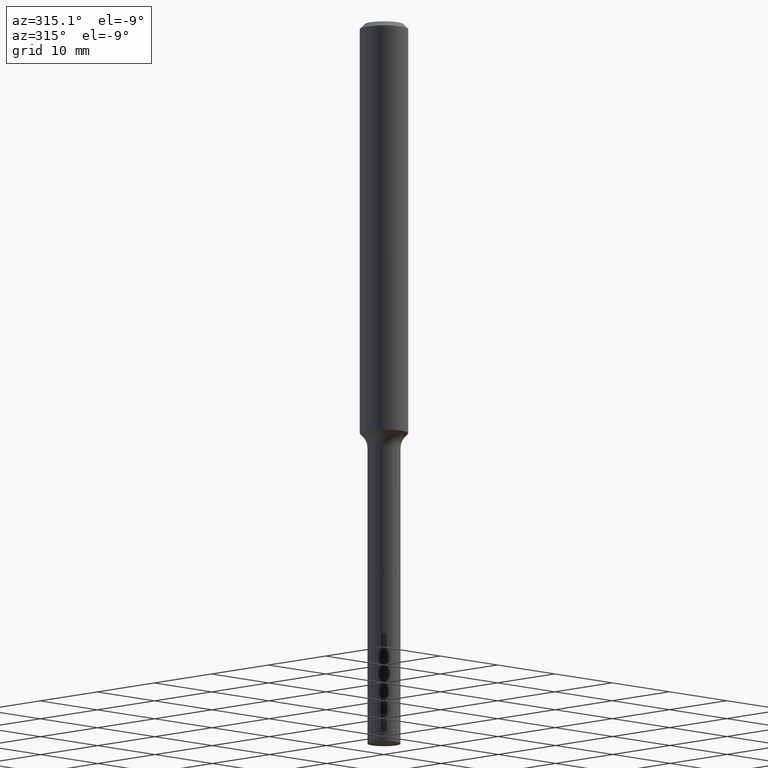
[diagram: clean part render]
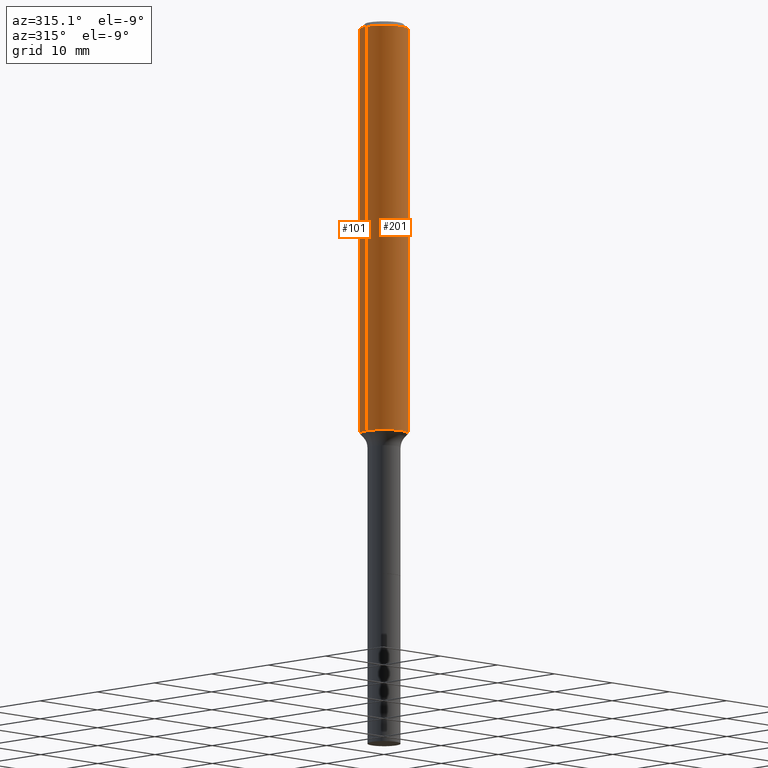
[diagram: same view with one multi-face feature highlighted, each face labeled with its STEP entity id]
A machine part, auxiliary view. The highlighted faces form ONE feature: a constant-radius fillet chain: 2 tangent blend faces with common blend radius 2.9997 mm. The faces share edges in the B-rep.
Their STEP definitions:
[1] entity #201 (Cylinder):
#30 = DIRECTION ( 'NONE',  ( -2.445468806185136877E-29, 3.491481338843145188E-15, 1.000000000000000000 ) ) ;
#33 = CARTESIAN_POINT ( 'NONE',  ( 0.1181000000000002326, -7.858907513786497827E-15, -2.014680572195880703 ) ) ;
#36 = EDGE_LOOP ( 'NONE', ( #253, #184, #406, #124 ) ) ;
#39 = EDGE_CURVE ( 'NONE', #344, #52, #70, .T. ) ;
#52 = VERTEX_POINT ( 'NONE', #114 ) ;
#57 = DIRECTION ( 'NONE',  ( -2.445468806185136877E-29, 3.491481338843145188E-15, 1.000000000000000000 ) ) ;
#58 = AXIS2_PLACEMENT_3D ( 'NONE', #443, #94, #329 ) ;
#59 = VERTEX_POINT ( 'NONE', #343 ) ;
#62 = VERTEX_POINT ( 'NONE', #33 ) ;
#65 = CIRCLE ( 'NONE', #58, 0.1180999999999999966 ) ;
#70 = LINE ( 'NONE', #188, #227 ) ;
#91 = EDGE_CURVE ( 'NONE', #62, #59, #269, .T. ) ;
#94 = DIRECTION ( 'NONE',  ( -2.445468806185136597E-29, 3.491481338843145583E-15, 1.000000000000000000 ) ) ;
#102 = FACE_OUTER_BOUND ( 'NONE', #36, .T. ) ;
#107 = CARTESIAN_POINT ( 'NONE',  ( 0.000000000000000000, 0.000000000000000000, 0.000000000000000000 ) ) ;
#114 = CARTESIAN_POINT ( 'NONE',  ( -0.1180999999999999966, -2.719193234454931553E-15, -0.02362000000000014088 ) ) ;
#120 = VECTOR ( 'NONE', #57, 39.37007874015748143 ) ;
#121 = DIRECTION ( 'NONE',  ( -2.445468806185136597E-29, 3.491481338843145583E-15, 1.000000000000000000 ) ) ;
#124 = ORIENTED_EDGE ( 'NONE', *, *, #231, .F. ) ;
#144 = DIRECTION ( 'NONE',  ( -2.445468806185136597E-29, 3.491481338843145583E-15, 1.000000000000000000 ) ) ;
#175 = CIRCLE ( 'NONE', #465, 0.1181000000000002326 ) ;
#184 = ORIENTED_EDGE ( 'NONE', *, *, #518, .T. ) ;
#188 = CARTESIAN_POINT ( 'NONE',  ( -0.1181000000000001215, 8.391509709326791832E-16, -5.809262341591049389E-30 ) ) ;
#192 = CARTESIAN_POINT ( 'NONE',  ( 4.926838493732249022E-29, -7.034219621551748775E-15, -2.014680572195880703 ) ) ;
#201 = ADVANCED_FACE ( 'NONE', ( #102 ), #412, .T. ) ;
#206 = CARTESIAN_POINT ( 'NONE',  ( -0.1181000000000002326, -6.195068650619069000E-15, -2.014680572195880703 ) ) ;
#227 = VECTOR ( 'NONE', #30, 39.37007874015748143 ) ;
#231 = EDGE_CURVE ( 'NONE', #52, #59, #65, .T. ) ;
#253 = ORIENTED_EDGE ( 'NONE', *, *, #39, .F. ) ;
#261 = DIRECTION ( 'NONE',  ( 1.000000000000000000, -6.982962677686266711E-15, 4.876176775795935793E-29 ) ) ;
#269 = LINE ( 'NONE', #353, #120 ) ;
#296 = AXIS2_PLACEMENT_3D ( 'NONE', #107, #144, #261 ) ;
#329 = DIRECTION ( 'NONE',  ( 1.000000000000000000, -6.982962677686266711E-15, 0.000000000000000000 ) ) ;
#343 = CARTESIAN_POINT ( 'NONE',  ( 0.1180999999999999966, -9.071566814582237199E-16, -0.02362000000000014088 ) ) ;
#344 = VERTEX_POINT ( 'NONE', #206 ) ;
#353 = CARTESIAN_POINT ( 'NONE',  ( 0.1181000000000001215, -8.246878922347489529E-16, 5.758764772215006046E-30 ) ) ;
#406 = ORIENTED_EDGE ( 'NONE', *, *, #91, .T. ) ;
#412 = CYLINDRICAL_SURFACE ( 'NONE', #296, 0.1181000000000001215 ) ;
#443 = CARTESIAN_POINT ( 'NONE',  ( 5.776197320209327532E-31, -8.246878922347559293E-17, -0.02362000000000014088 ) ) ;
#465 = AXIS2_PLACEMENT_3D ( 'NONE', #192, #121, #477 ) ;
#477 = DIRECTION ( 'NONE',  ( 1.000000000000000000, -6.982962677686266711E-15, 0.000000000000000000 ) ) ;
#518 = EDGE_CURVE ( 'NONE', #344, #62, #175, .T. ) ;
[2] entity #101 (Cylinder):
#10 = EDGE_LOOP ( 'NONE', ( #292, #508, #492, #300 ) ) ;
#24 = CARTESIAN_POINT ( 'NONE',  ( 4.926838493732249022E-29, -7.034219621551748775E-15, -2.014680572195880703 ) ) ;
#30 = DIRECTION ( 'NONE',  ( -2.445468806185136877E-29, 3.491481338843145188E-15, 1.000000000000000000 ) ) ;
#33 = CARTESIAN_POINT ( 'NONE',  ( 0.1181000000000002326, -7.858907513786497827E-15, -2.014680572195880703 ) ) ;
#39 = EDGE_CURVE ( 'NONE', #344, #52, #70, .T. ) ;
#52 = VERTEX_POINT ( 'NONE', #114 ) ;
#57 = DIRECTION ( 'NONE',  ( -2.445468806185136877E-29, 3.491481338843145188E-15, 1.000000000000000000 ) ) ;
#59 = VERTEX_POINT ( 'NONE', #343 ) ;
#62 = VERTEX_POINT ( 'NONE', #33 ) ;
#68 = DIRECTION ( 'NONE',  ( -2.445468806185136597E-29, 3.491481338843145583E-15, 1.000000000000000000 ) ) ;
#70 = LINE ( 'NONE', #188, #227 ) ;
#76 = FACE_OUTER_BOUND ( 'NONE', #10, .T. ) ;
#91 = EDGE_CURVE ( 'NONE', #62, #59, #269, .T. ) ;
#101 = ADVANCED_FACE ( 'NONE', ( #76 ), #442, .T. ) ;
#114 = CARTESIAN_POINT ( 'NONE',  ( -0.1180999999999999966, -2.719193234454931553E-15, -0.02362000000000014088 ) ) ;
#120 = VECTOR ( 'NONE', #57, 39.37007874015748143 ) ;
#135 = AXIS2_PLACEMENT_3D ( 'NONE', #435, #517, #164 ) ;
#164 = DIRECTION ( 'NONE',  ( 1.000000000000000000, -6.982962677686266711E-15, 0.000000000000000000 ) ) ;
#182 = EDGE_CURVE ( 'NONE', #62, #344, #302, .T. ) ;
#186 = DIRECTION ( 'NONE',  ( 1.000000000000000000, -6.982962677686266711E-15, 0.000000000000000000 ) ) ;
#188 = CARTESIAN_POINT ( 'NONE',  ( -0.1181000000000001215, 8.391509709326791832E-16, -5.809262341591049389E-30 ) ) ;
#197 = CIRCLE ( 'NONE', #135, 0.1180999999999999966 ) ;
#206 = CARTESIAN_POINT ( 'NONE',  ( -0.1181000000000002326, -6.195068650619069000E-15, -2.014680572195880703 ) ) ;
#227 = VECTOR ( 'NONE', #30, 39.37007874015748143 ) ;
#256 = AXIS2_PLACEMENT_3D ( 'NONE', #493, #277, #363 ) ;
#269 = LINE ( 'NONE', #353, #120 ) ;
#272 = EDGE_CURVE ( 'NONE', #59, #52, #197, .T. ) ;
#277 = DIRECTION ( 'NONE',  ( -2.445468806185136597E-29, 3.491481338843145583E-15, 1.000000000000000000 ) ) ;
#292 = ORIENTED_EDGE ( 'NONE', *, *, #182, .T. ) ;
#300 = ORIENTED_EDGE ( 'NONE', *, *, #91, .F. ) ;
#302 = CIRCLE ( 'NONE', #379, 0.1181000000000002326 ) ;
#343 = CARTESIAN_POINT ( 'NONE',  ( 0.1180999999999999966, -9.071566814582237199E-16, -0.02362000000000014088 ) ) ;
#344 = VERTEX_POINT ( 'NONE', #206 ) ;
#353 = CARTESIAN_POINT ( 'NONE',  ( 0.1181000000000001215, -8.246878922347489529E-16, 5.758764772215006046E-30 ) ) ;
#363 = DIRECTION ( 'NONE',  ( 1.000000000000000000, -6.982962677686266711E-15, 4.876176775795935793E-29 ) ) ;
#379 = AXIS2_PLACEMENT_3D ( 'NONE', #24, #68, #186 ) ;
#435 = CARTESIAN_POINT ( 'NONE',  ( 5.776197320209327532E-31, -8.246878922347559293E-17, -0.02362000000000014088 ) ) ;
#442 = CYLINDRICAL_SURFACE ( 'NONE', #256, 0.1181000000000001215 ) ;
#492 = ORIENTED_EDGE ( 'NONE', *, *, #272, .F. ) ;
#493 = CARTESIAN_POINT ( 'NONE',  ( 0.000000000000000000, 0.000000000000000000, 0.000000000000000000 ) ) ;
#508 = ORIENTED_EDGE ( 'NONE', *, *, #39, .T. ) ;
#517 = DIRECTION ( 'NONE',  ( -2.445468806185136597E-29, 3.491481338843145583E-15, 1.000000000000000000 ) ) ;